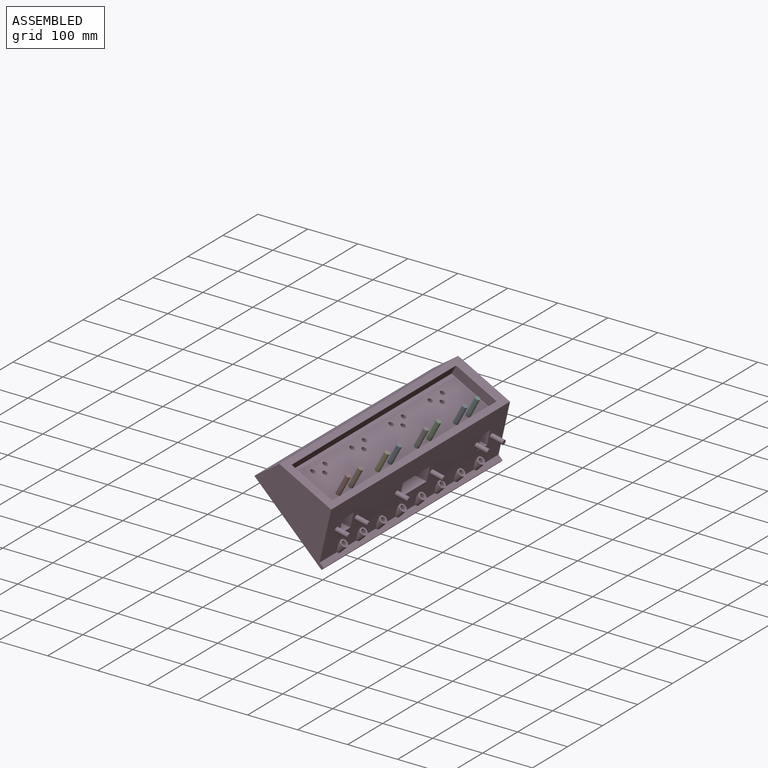
[diagram: assembled view]
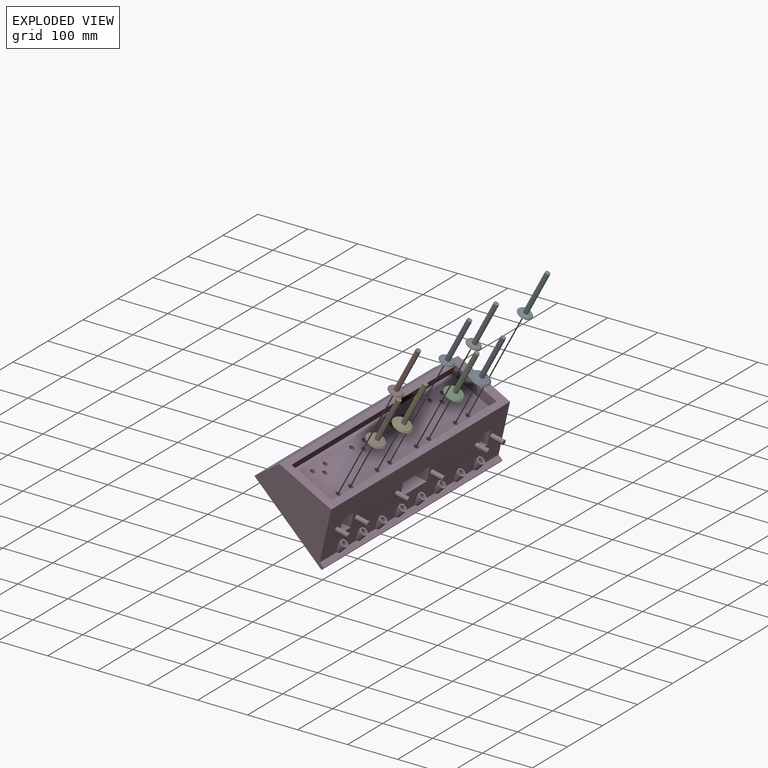
[diagram: exploded view]
GUIDED TOUR — MATED ASSEMBLY (Onshape document ac3dccc6439f314f635ed3dc, AutoMate assembly ac3dccc6439f314f635ed3dc_cd100fb6cbf6c3f0b143298e_cbab13c426cafeba38b45de8_default)

This assembly has 9 components, labeled P0..P8 below (a component is one placed occurrence of a part; the same part can appear more than once), held together by 8 mates. A mate is a constraint between two components; its type names the relative motion it leaves free:
  SLIDER — leaves translation along the listed axis free.
Axis/direction vectors are unit vectors and 'through' points are millimeter coordinates, both in the assembly's world frame.

MATES
  1. SLIDER "Slider 1": P1 <-> P3, axis (-0.469, 0.000, -0.883) through (-127.09, -284.05, -16.08) mm
  2. SLIDER "Slider 8": P5 <-> P3, axis (-0.469, 0.000, -0.883) through (-128.10, 51.23, -17.97) mm
  3. SLIDER "Slider 2": P7 <-> P3, axis (-0.469, 0.000, -0.883) through (-127.08, -319.61, -16.05) mm
  4. SLIDER "Slider 6": P8 <-> P3, axis (0.469, 0.000, 0.883) through (-105.87, -172.29, 23.85) mm
  5. SLIDER "Slider 7": P6 <-> P3, axis (-0.469, 0.000, -0.883) through (-127.58, -96.09, -17.00) mm
  6. SLIDER "Slider 3": P4 <-> P3, axis (-0.469, 0.000, -0.883) through (-127.47, -207.85, -16.79) mm
  7. SLIDER "Slider 4": P2 <-> P3, axis (-0.469, 0.000, -0.883) through (-127.43, -60.53, -16.72) mm
  8. SLIDER "Slider 5": P0 <-> P3, axis (-0.469, 0.000, -0.883) through (-128.21, 15.67, -18.18) mm

ASSEMBLY ORDER
  1. P3 — the base component [order heuristic]
  2. P1 — core [order heuristic]
  3. P4 — core [order heuristic]
  4. P6 [order verified]
  5. P8 [order verified]
  6. P5 [order verified]
  7. P0 [order verified]
  8. P2 [order verified]
  9. P7 [order verified]
(P0, P2, P5, P6, P8 verified with a relaxed clearance tolerance: the source model stores slight part interference there.)
Order-tag legend:
  [order verified] — this step's position reverses a verified removal order: the component was checked to insert without passing through the ones already placed.
  [order heuristic] — the first 3 components form the assembly's core: parts whose collision-free extraction could not be verified, listed in mate-graph order.

Of the 9 components, 4 carry the full construction recipe — the FeatureScript program that regenerates the part's solid from scratch; the rest are supplied as boundary geometry only.
Each toured component is shown spotlighted twice — in the assembled view, then in the exploded view, where a leader line traces a displaced component back to its assembled socket (saturated green if recipe-attached, orange if geometry-only; every other component desaturated gray) — followed by its recipe or geometry summary and the mates that hold it.
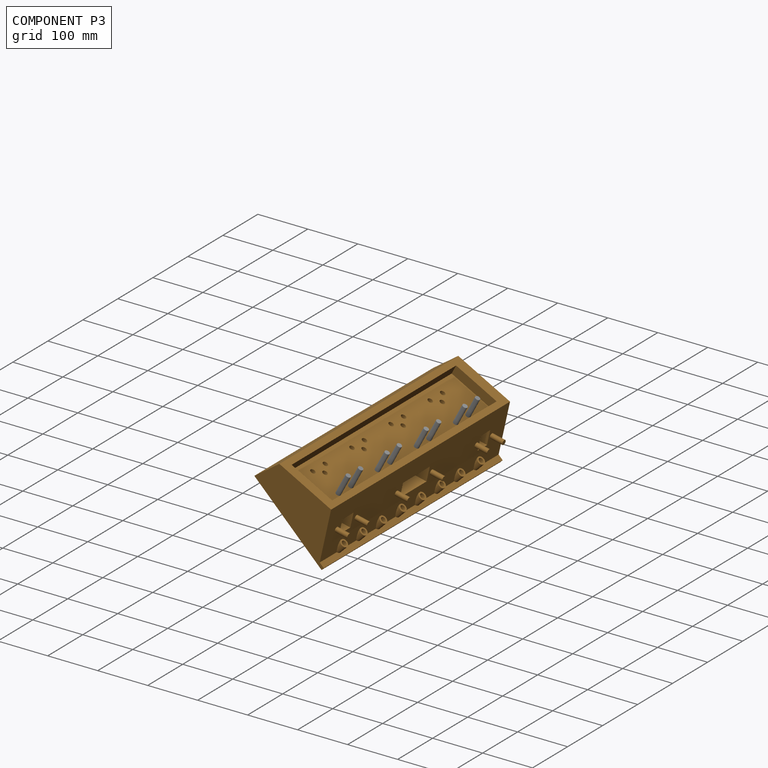
[diagram: component P3 — assembled]
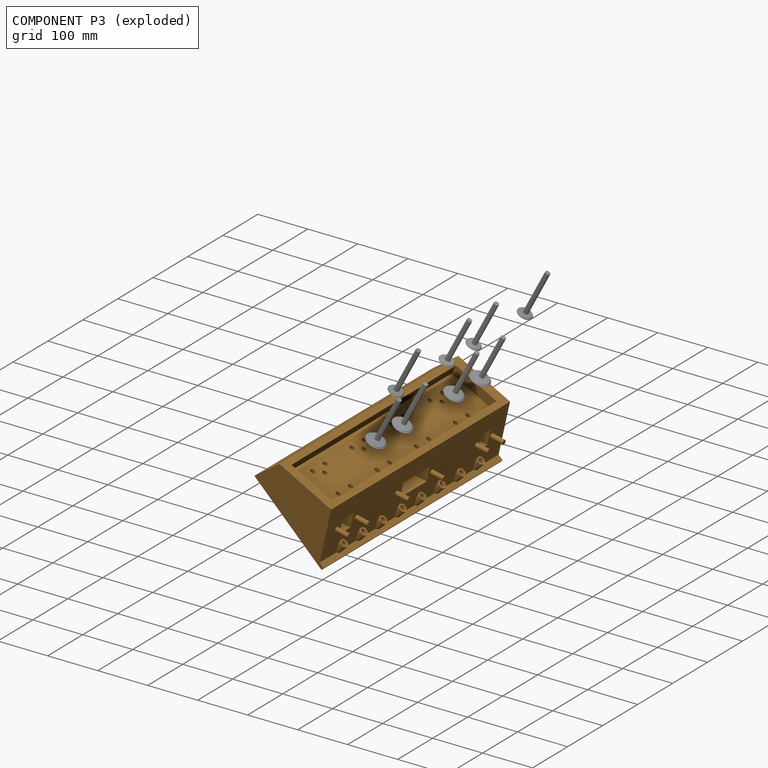
[diagram: component P3 — exploded]
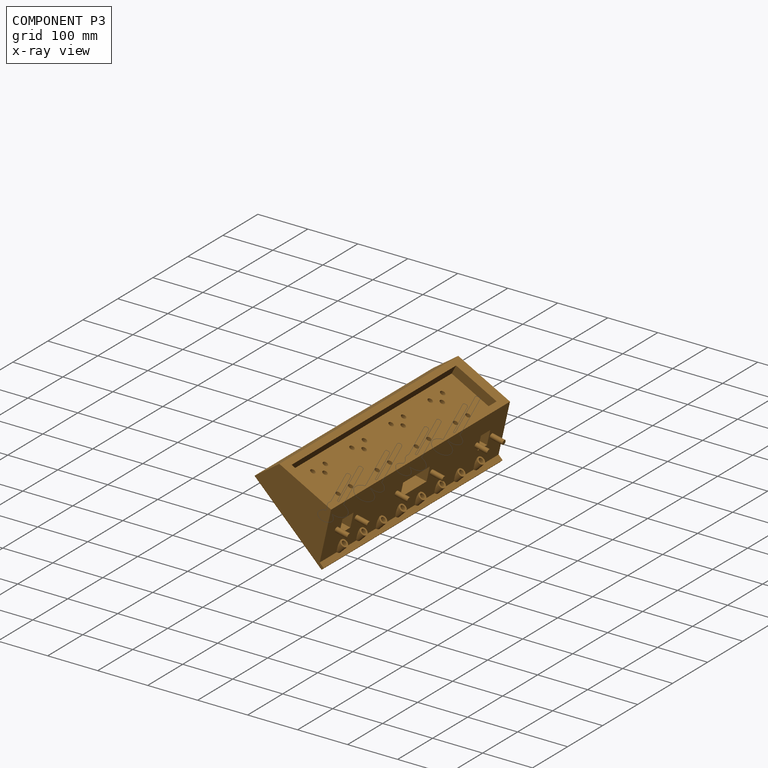
[diagram: component P3 — x-ray view]
COMPONENT P3 — geometry summary (no construction recipe available for this part):
  bounding box: 511.7 x 169.9 x 168.5 mm
  B-rep topology: 1 solid, 110 faces, 550 edges
  volume: 4595242 mm^3 (31% of its bounding box)
Held by: SLIDER mate "Slider 1" to P1; SLIDER mate "Slider 8" to P5; SLIDER mate "Slider 2" to P7; SLIDER mate "Slider 6" to P8; SLIDER mate "Slider 7" to P6; SLIDER mate "Slider 3" to P4; SLIDER mate "Slider 4" to P2; SLIDER mate "Slider 5" to P0.
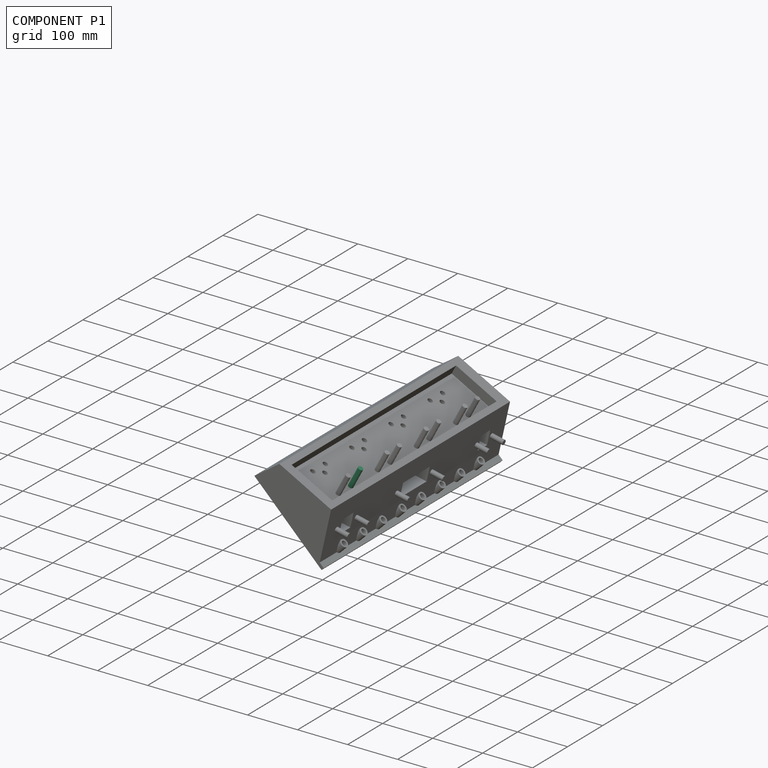
[diagram: component P1 — assembled]
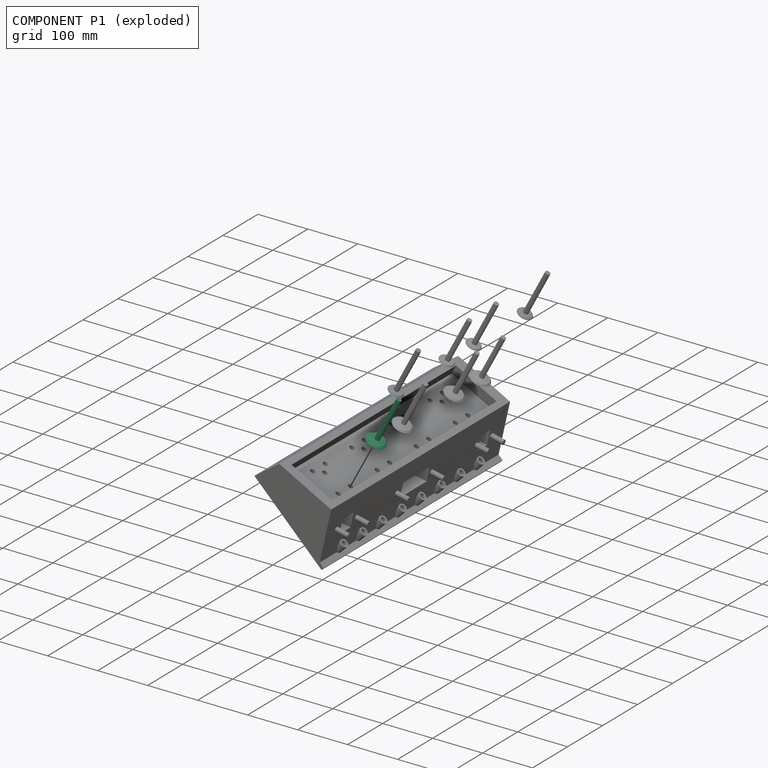
[diagram: component P1 — exploded]
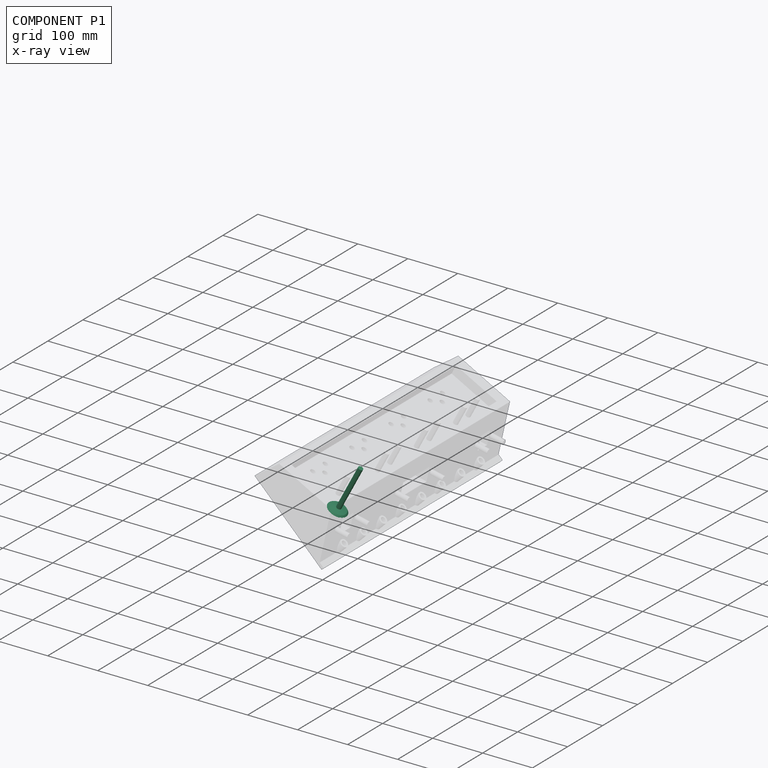
[diagram: component P1 — x-ray view]
COMPONENT P1 — same part as P0 (CADFS 00629434); its construction recipe is shown at P0.
Held by: SLIDER mate "Slider 1" to P3.
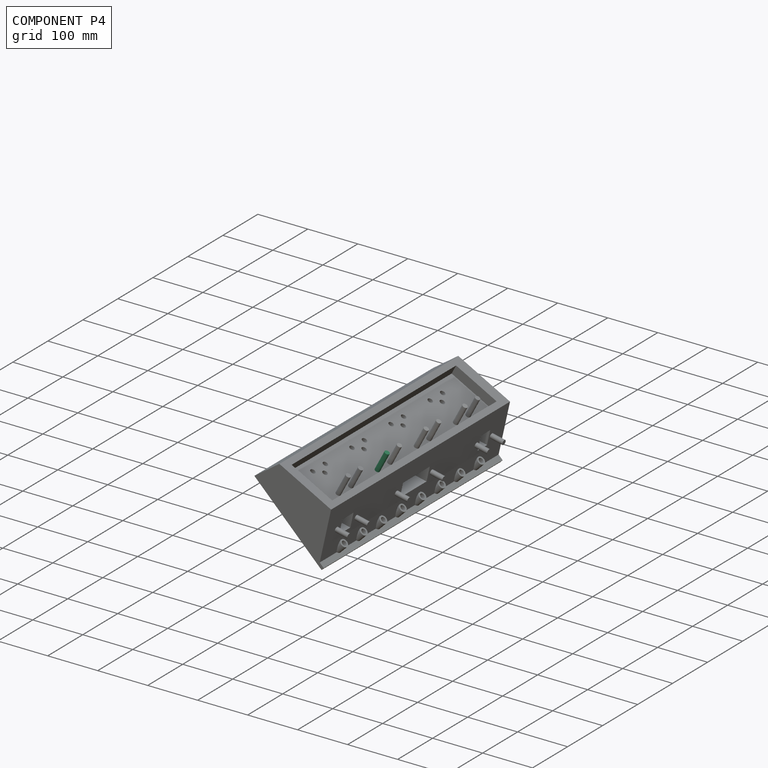
[diagram: component P4 — assembled]
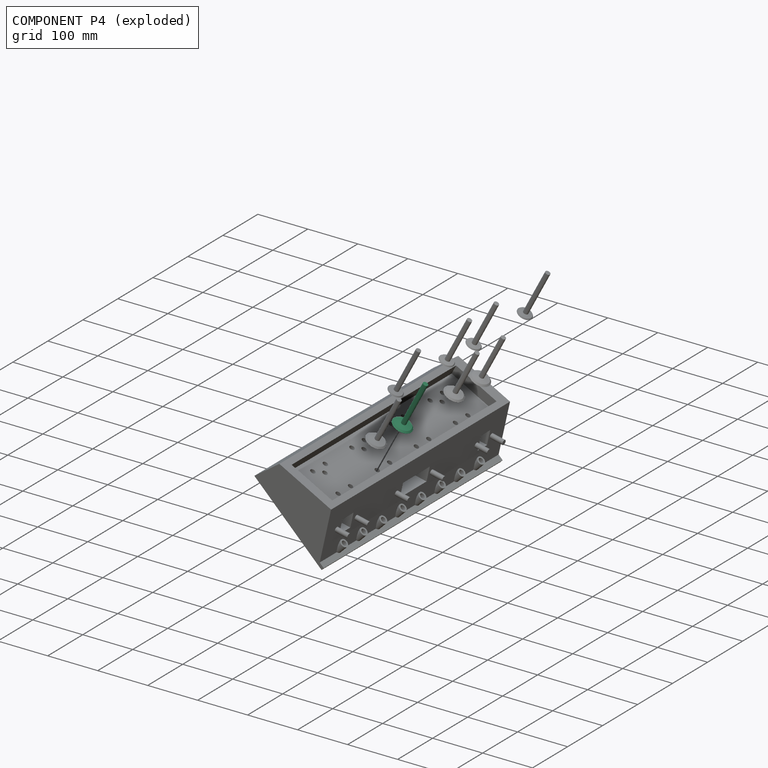
[diagram: component P4 — exploded]
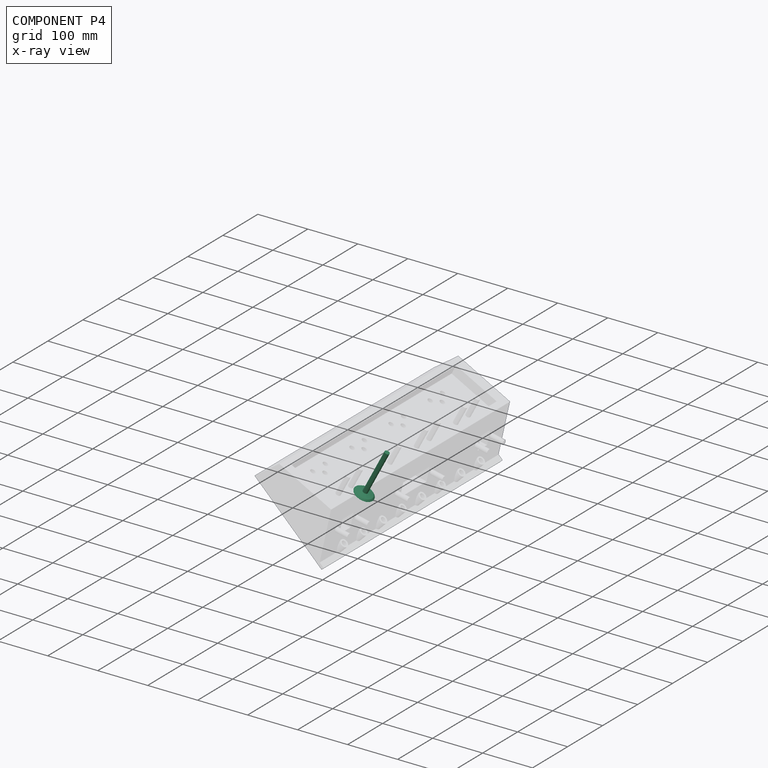
[diagram: component P4 — x-ray view]
COMPONENT P4 — same part as P0 (CADFS 00629434); its construction recipe is shown at P0.
Held by: SLIDER mate "Slider 3" to P3.
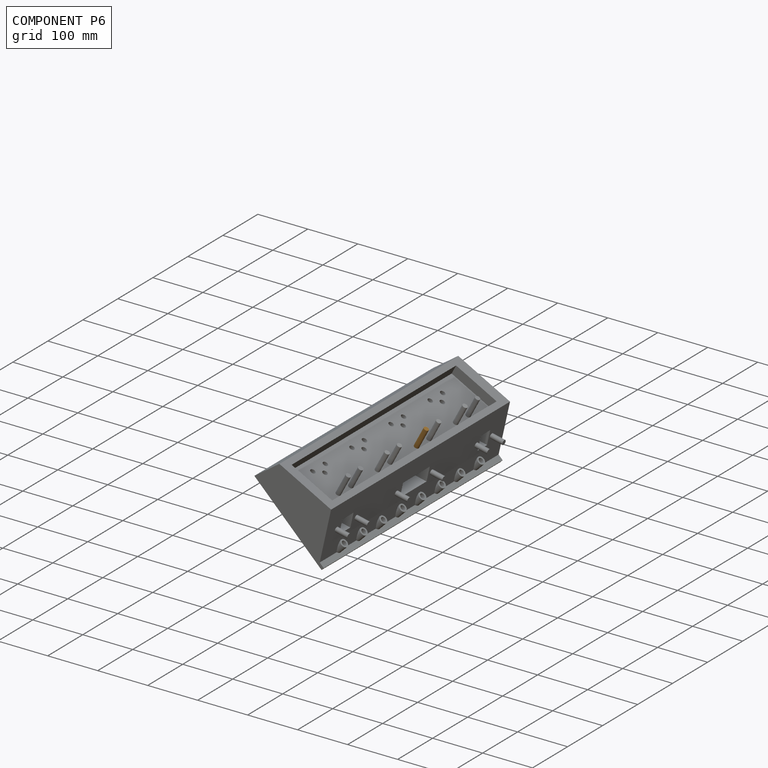
[diagram: component P6 — assembled]
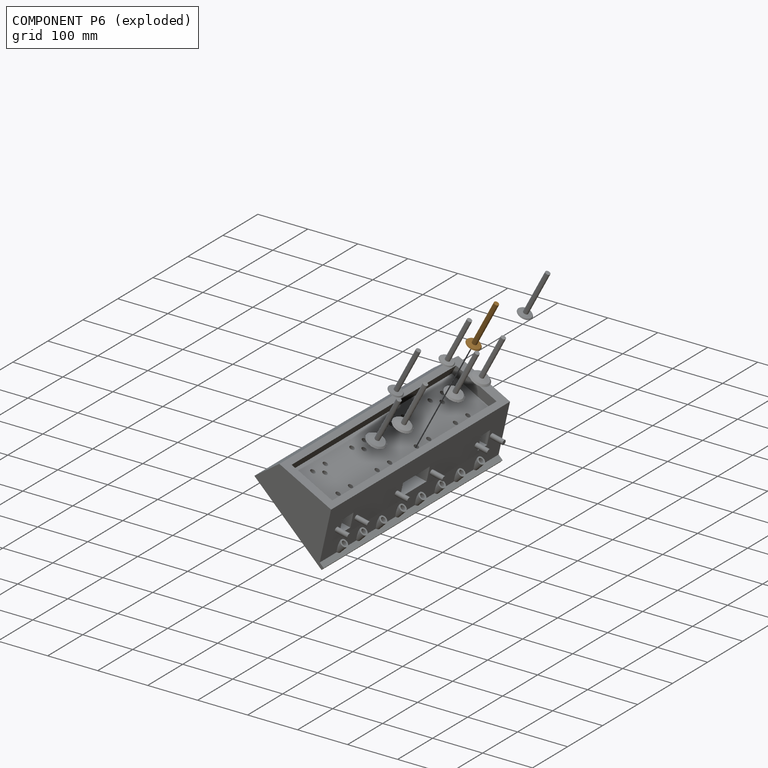
[diagram: component P6 — exploded]
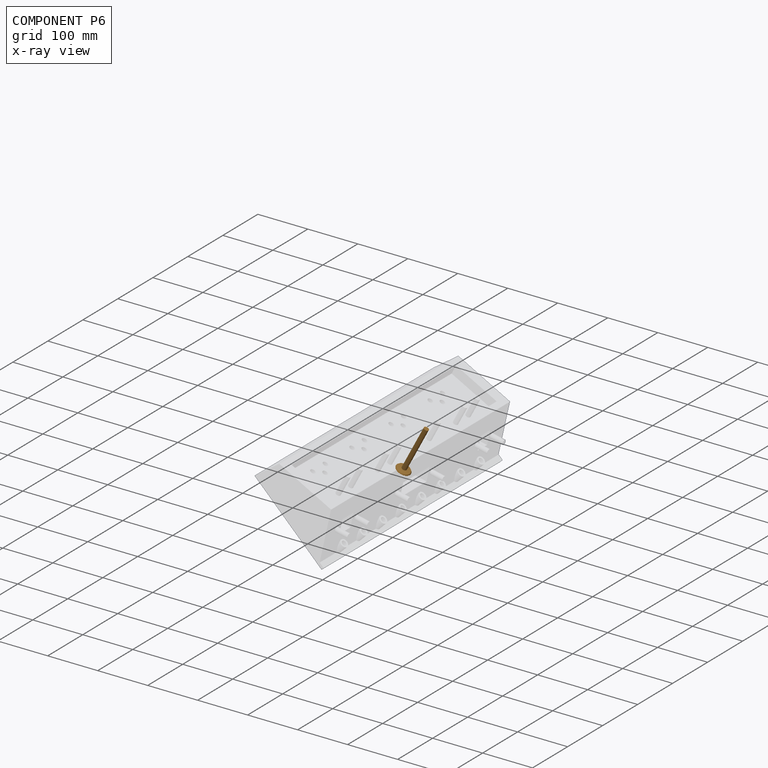
[diagram: component P6 — x-ray view]
COMPONENT P6 — geometry summary (no construction recipe available for this part):
  bounding box: 97.7 x 29.0 x 29.0 mm
  B-rep topology: 1 solid, 5 faces, 14 edges
  volume: 8270 mm^3 (10% of its bounding box)
  symmetry: revolution-symmetric about the z axis through its bounding-box center; mirror-symmetric across its x mid-plane, y mid-plane
Held by: SLIDER mate "Slider 7" to P3.
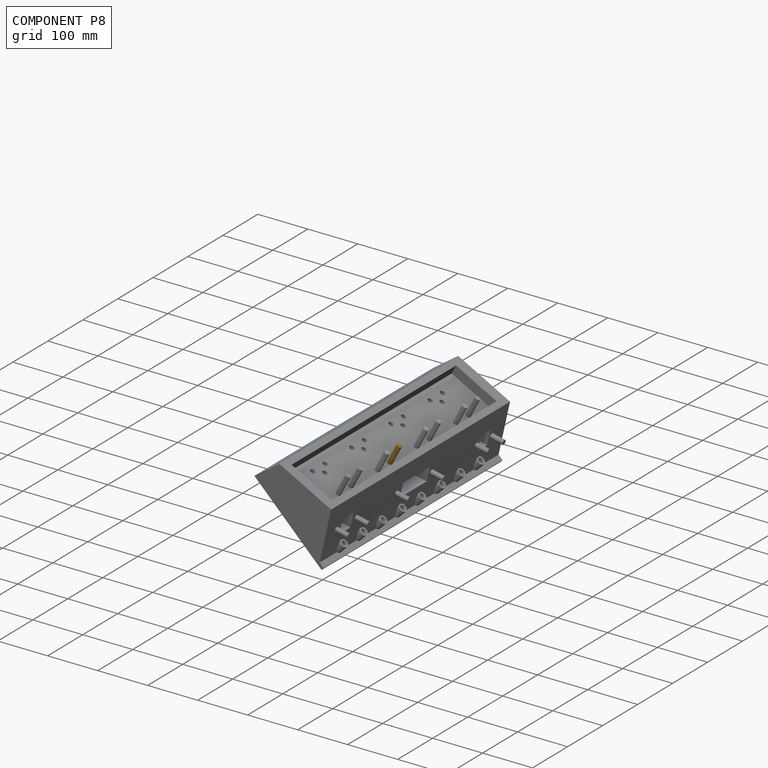
[diagram: component P8 — assembled]
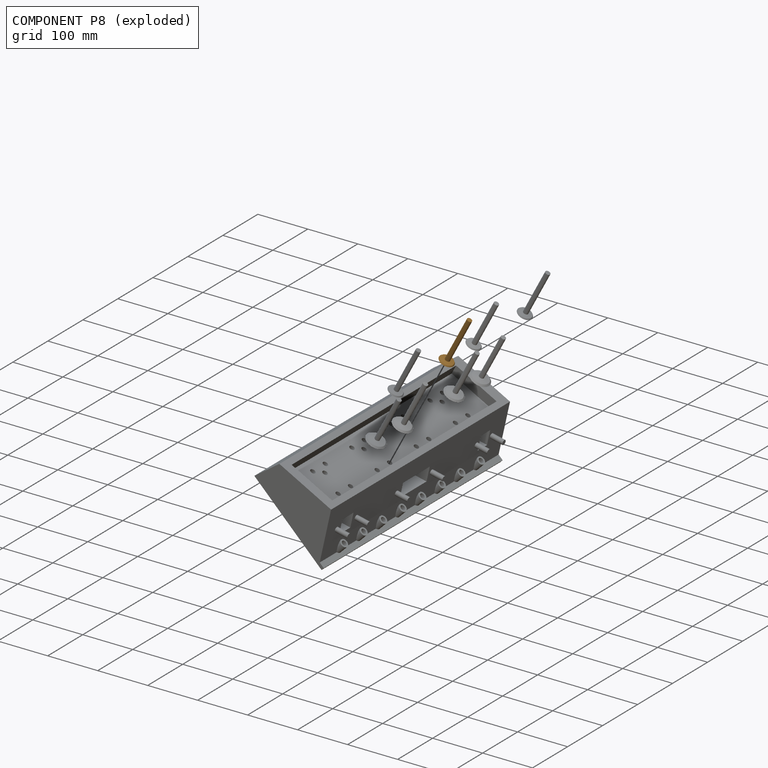
[diagram: component P8 — exploded]
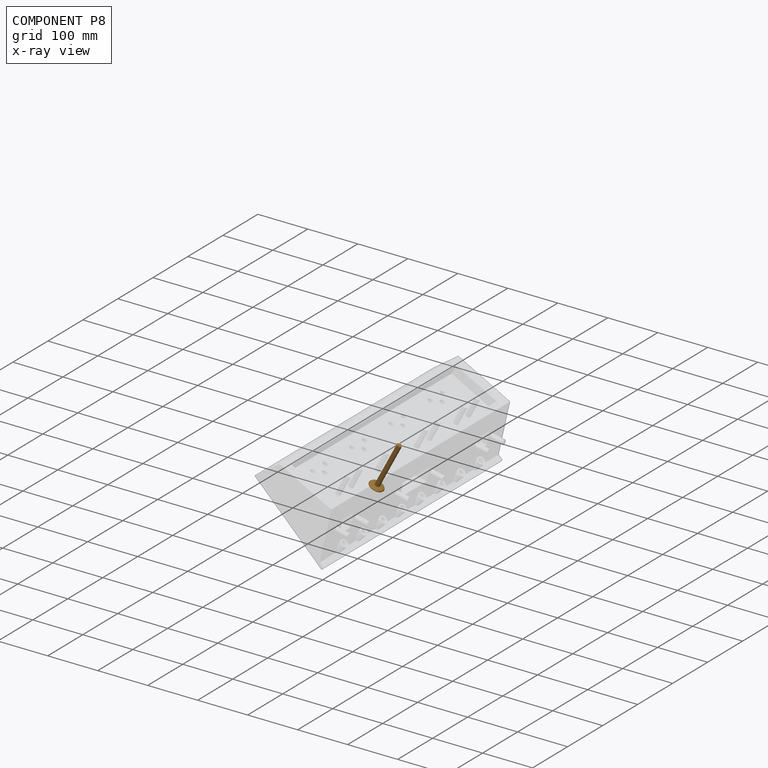
[diagram: component P8 — x-ray view]
COMPONENT P8 — geometry summary (no construction recipe available for this part):
  bounding box: 97.7 x 29.0 x 29.0 mm
  B-rep topology: 1 solid, 5 faces, 14 edges
  volume: 8270 mm^3 (10% of its bounding box)
  symmetry: revolution-symmetric about the z axis through its bounding-box center; mirror-symmetric across its x mid-plane, y mid-plane
Held by: SLIDER mate "Slider 6" to P3.
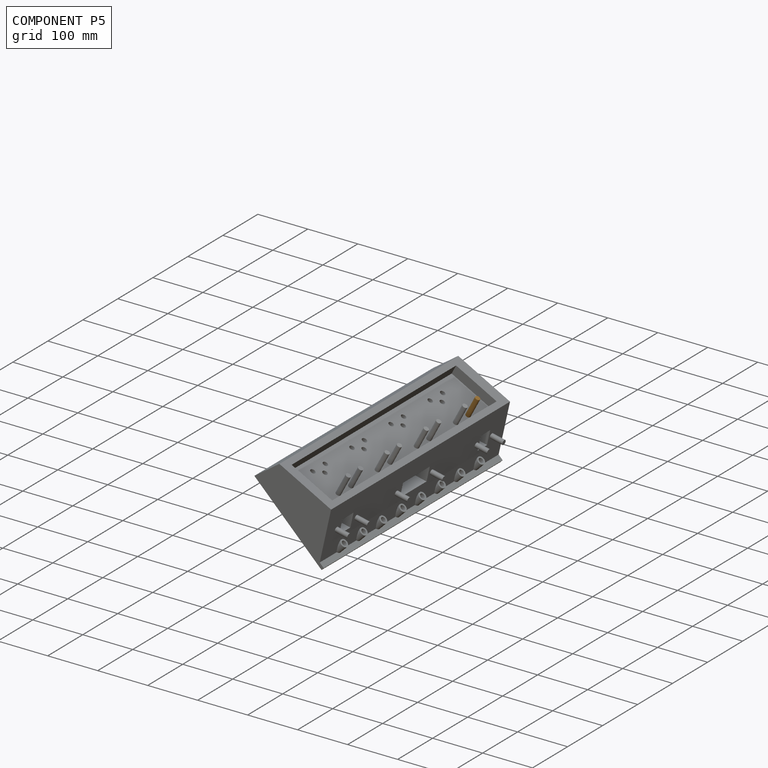
[diagram: component P5 — assembled]
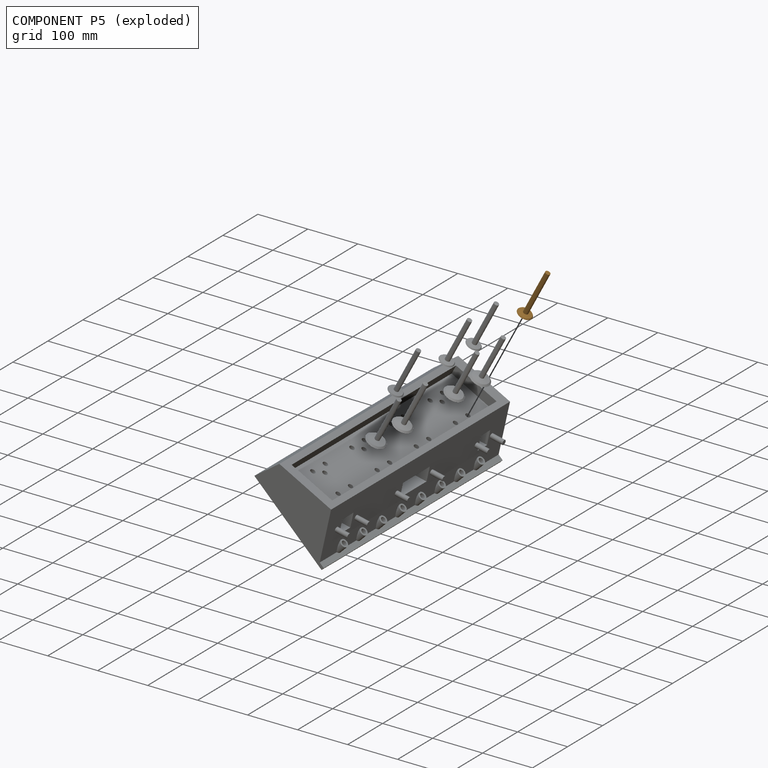
[diagram: component P5 — exploded]
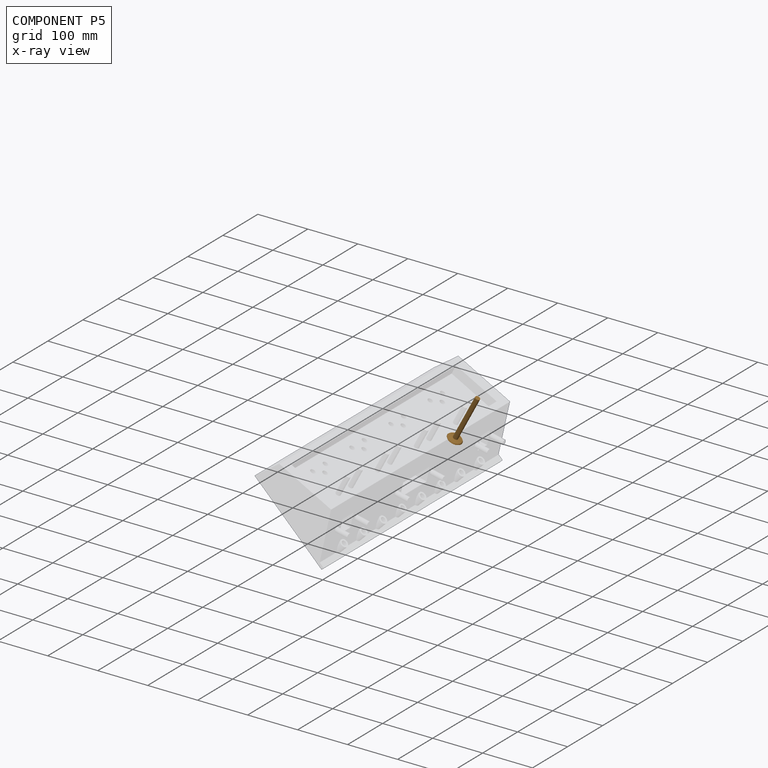
[diagram: component P5 — x-ray view]
COMPONENT P5 — geometry summary (no construction recipe available for this part):
  bounding box: 97.7 x 29.0 x 29.0 mm
  B-rep topology: 1 solid, 5 faces, 14 edges
  volume: 8270 mm^3 (10% of its bounding box)
  symmetry: revolution-symmetric about the z axis through its bounding-box center; mirror-symmetric across its x mid-plane, y mid-plane
Held by: SLIDER mate "Slider 8" to P3.
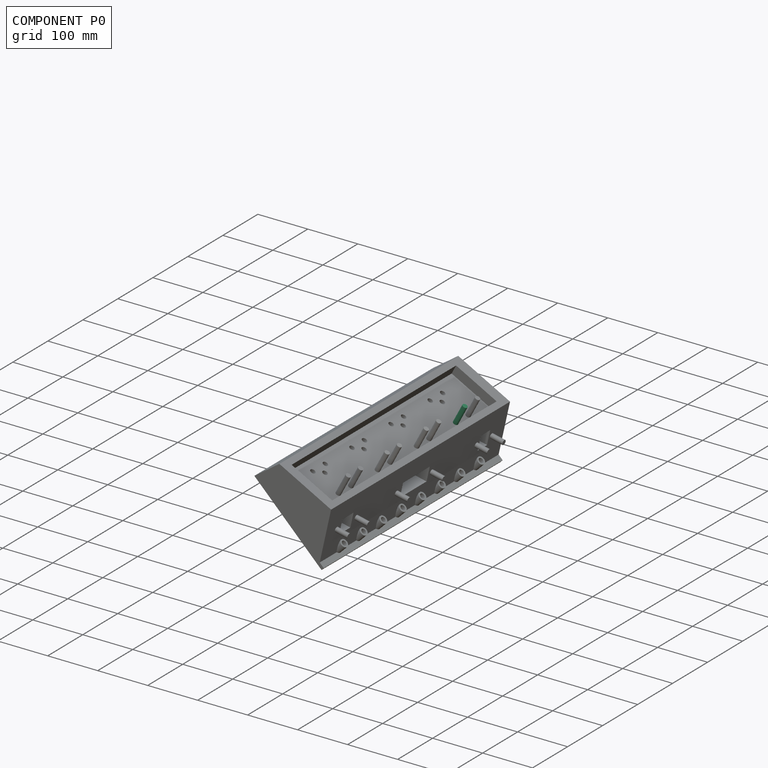
[diagram: component P0 — assembled]
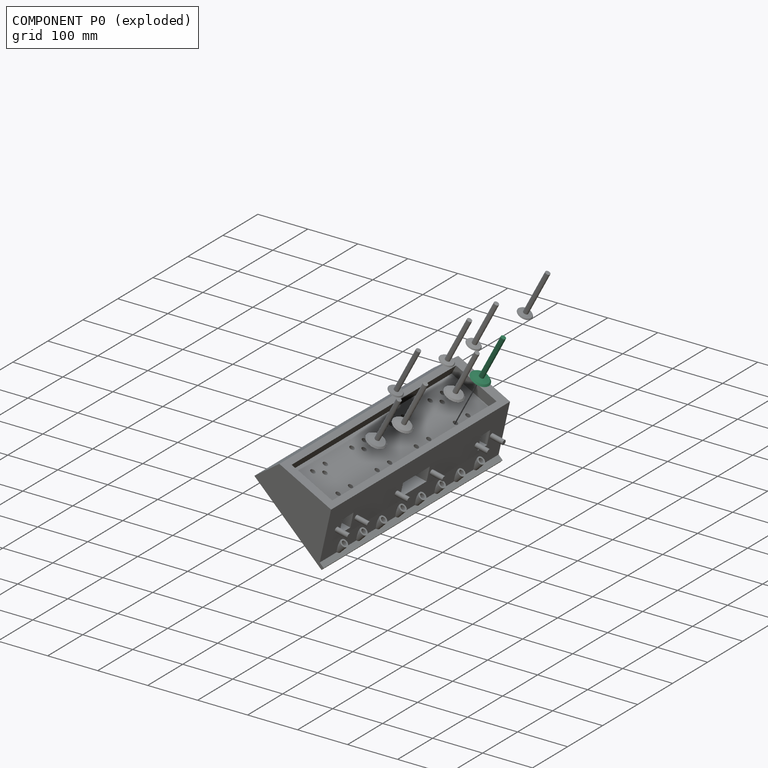
[diagram: component P0 — exploded]
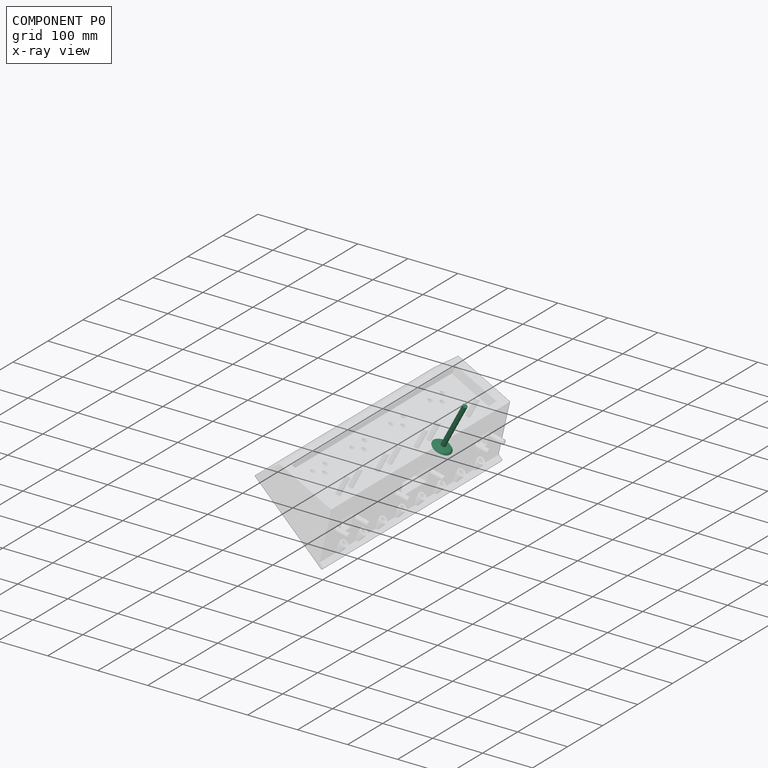
[diagram: component P0 — x-ray view]
COMPONENT P0 — recipe-attached (CADFS 00629434, mesh-verified: the recipe's output STEP matches this component's geometry to below the mesh-comparison resolution (tessellation chordal tolerance ~0.169 mm)).
Held by: SLIDER mate "Slider 5" to P3.
Construction recipe (FeatureScript — the CAD program that rebuilds this solid; sketch coordinates are in the units given by the * unit suffixes, e.g. mm):

FeatureScript 1732;
import(path : "onshape/std/geometry.fs", version : "1732.0");
import(path : "onshape/std/common.fs", version : "1732.0");
const mm = millimeter;
const VERTEX = EntityType.VERTEX;
const EDGE = EntityType.EDGE;
const FACE = EntityType.FACE;
const BODY = EntityType.BODY;
function v(x, y){return vector(x, y);}
function OD(order){return orderDisambiguation(order);}
function OSD(set){return originalSetDisambiguation(set);}
function TD(topology){return topologyDisambiguation(topology);}
function TDD(query){return trueDependencyDisambiguation(query);}
function sQuery(a, b, c) {return sketchEntityQuery(a, b, c);}

annotation { "Feature Type Name" : "Feature", "Feature Type Description" : "" }
export const myFeature = defineFeature(function(context is Context, id is Id, definition is map)
    precondition{}
    {
        {
            var Q0;
            Q0=qCreatedBy(makeId("Top.planeOp"),FACE);
            var sketch = newSketch(context, id + "F0", { "sketchPlane" : qUnion([Q0])});
            skCircle(sketch, "E0", {"center": v(0, 0) * mm, "radius": 25.65 * mm});
            skSolve(sketch);
        }
        {
            var Q0;
            Q0=qCreatedBy(makeId("Front.planeOp"),FACE);
            var sketch = newSketch(context, id + "F1", { "sketchPlane" : qUnion([Q0])});
            skLineSegment(sketch, "E1", {"start": v(0, 0) * mm, "end": v(19.18, 0) * mm});
            skLineSegment(sketch, "E2", {"start": v(19.18, 0) * mm, "end": v(16.12, 3.14) * mm});
            skLineSegment(sketch, "E3.bottom", {"start": v(-4.76, 69.85) * mm, "end": v(4.76, 69.85) * mm});
            skLineSegment(sketch, "E3.top", {"start": v(-4.76, -69.85) * mm, "end": v(4.76, -69.85) * mm});
            skLineSegment(sketch, "E3.left", {"start": v(-4.76, 69.85) * mm, "end": v(-4.76, -69.85) * mm});
            skLineSegment(sketch, "E3.right", {"start": v(4.76, 69.85) * mm, "end": v(4.76, 4.95) * mm});
            skPoint(sketch, "E3.middle", {"position": v(0, 0) * mm});
            skLineSegment(sketch, "E4", {"start": v(16.12, 3.14) * mm, "end": v(4.76, 4.95) * mm});
            skLineSegment(sketch, "E5", {"start": v(0, 0) * mm, "end": v(-4.76, 0) * mm});
            skLineSegment(sketch, "E6.MirrorCS", {"start": v(-16.12, 3.14) * mm, "end": v(-4.76, 4.95) * mm});
            skLineSegment(sketch, "E7.MirrorCS", {"start": v(-19.18, 0) * mm, "end": v(-16.12, 3.14) * mm});
            skLineSegment(sketch, "E8.MirrorCS", {"start": v(0, 0) * mm, "end": v(-19.18, 0) * mm});
            skLineSegment(sketch, "E9", {"start": v(0, 69.85) * mm, "end": v(0, -34.88) * mm});
            skSolve(sketch);
        }
        {
            var Q0;
            {var subQ4=sQuery(id+"F1.wireOp",EDGE,"E1");Q0=makeQuery(id+"F1.imprint","IMPRINT",FACE,{"disambiguationData":[TD([[makeQuery(id+"F1.imprint","IMPRINT",EDGE,{"derivedFrom":subQ4}),1.0]])]});}
            var Q1;
            Q1=sQuery(id+"F0.wireOp",EDGE,"E0");
            revolve(context, id + "F2", {"entities" : qUnion([Q0]), "axis" : qUnion([Q1]), "revolveType" : RevolveType.FULL});
        }
        {
            var Q0;
            Q0=makeQuery(id+"F2.opRevolve","SWEPT_FACE",FACE,{"disambiguationData":[OSD([sQuery(id+"F1.wireOp",EDGE,"E3.bottom")])]});
            extrude(context, id + "F3", {"entities" : qUnion([Q0]), "operationType" : NewBodyOperationType.ADD, "depth" : 50.8 * mm, "offsetDistance" : 25.4 * mm});
        }
        {
            var Q0;
            Q0=makeQuery(id+"F3.opExtrude","CAP_FACE",FACE,{"disambiguationData":[OSD([sQuery(id+"F1.wireOp",EDGE,"E3.bottom")])],"isStart":false});
            extrude(context, id + "F4", {"entities" : qUnion([Q0]), "operationType" : NewBodyOperationType.REMOVE, "oppositeDirection" : true, "depth" : 22.22 * mm, "offsetDistance" : 25.4 * mm});
        }
    });
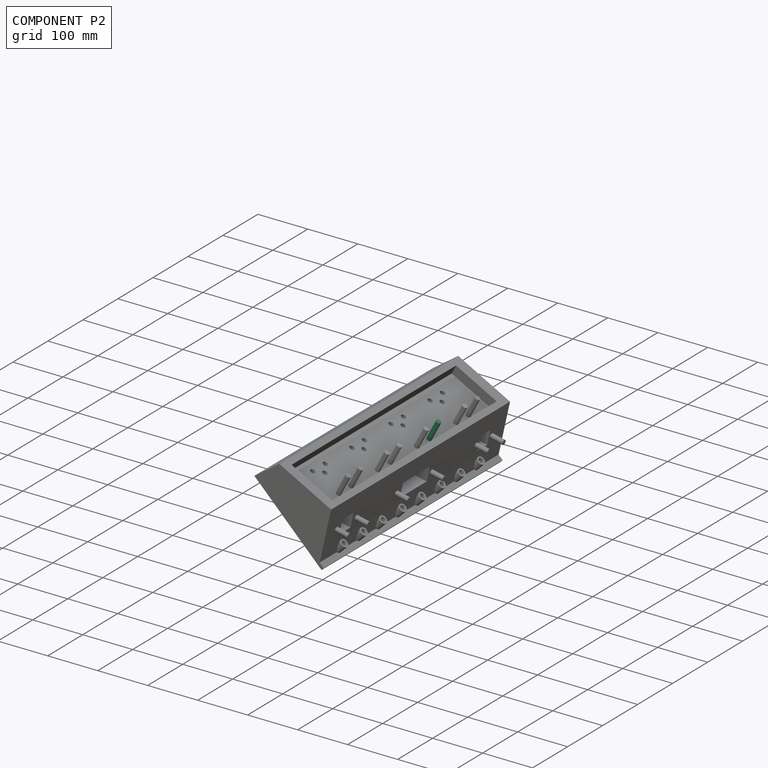
[diagram: component P2 — assembled]
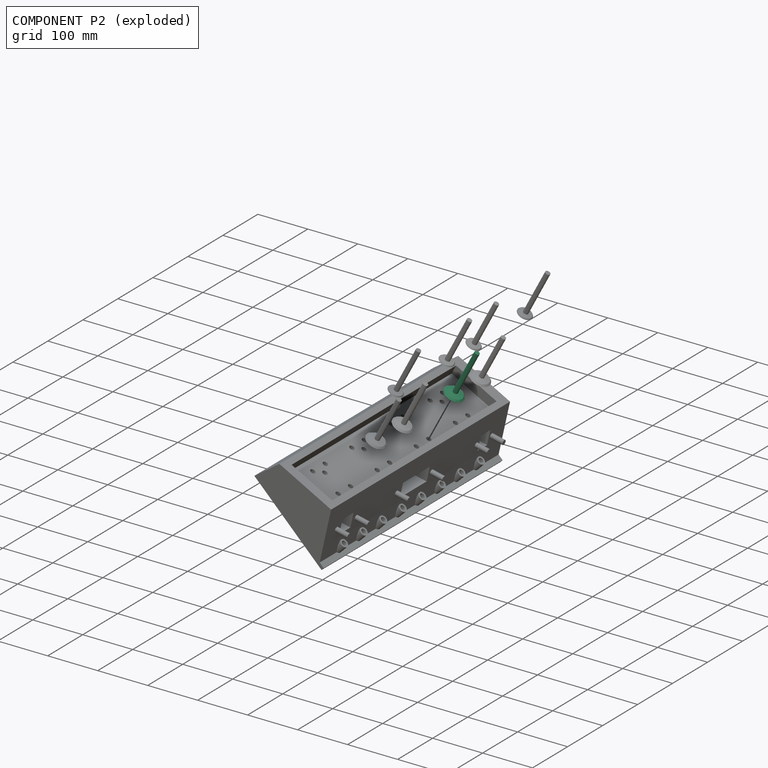
[diagram: component P2 — exploded]
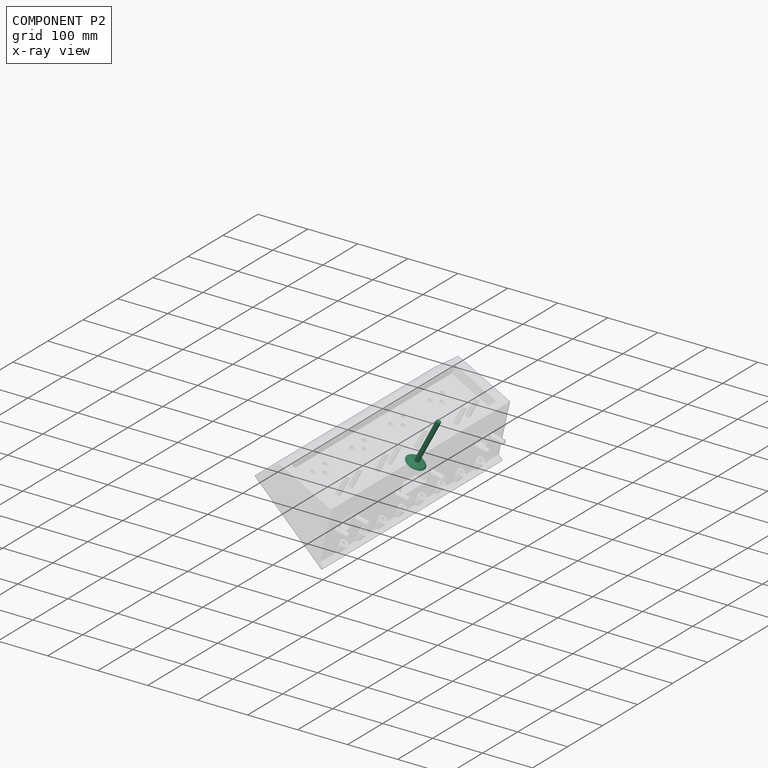
[diagram: component P2 — x-ray view]
COMPONENT P2 — same part as P0 (CADFS 00629434); its construction recipe is shown at P0.
Held by: SLIDER mate "Slider 4" to P3.
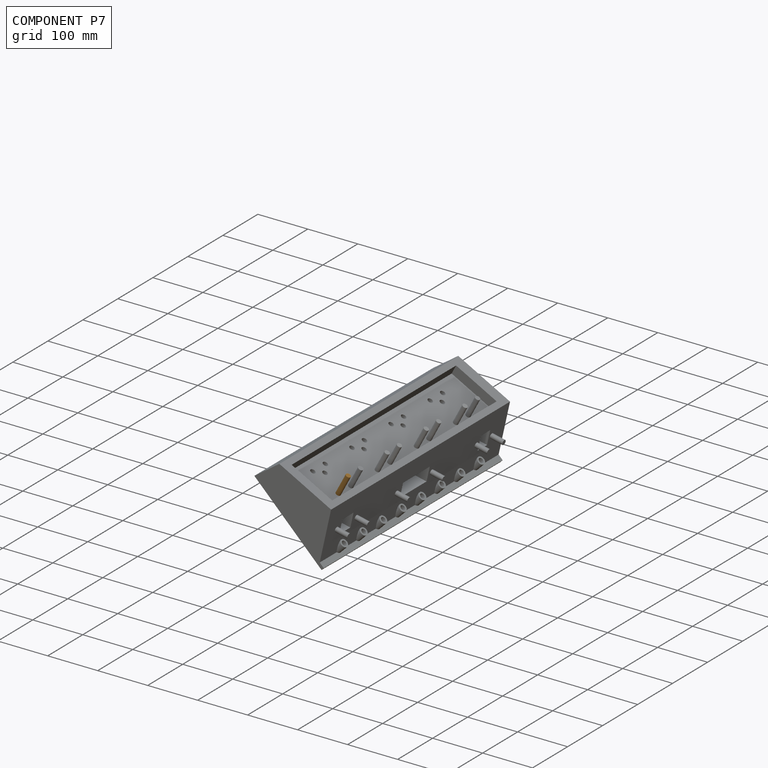
[diagram: component P7 — assembled]
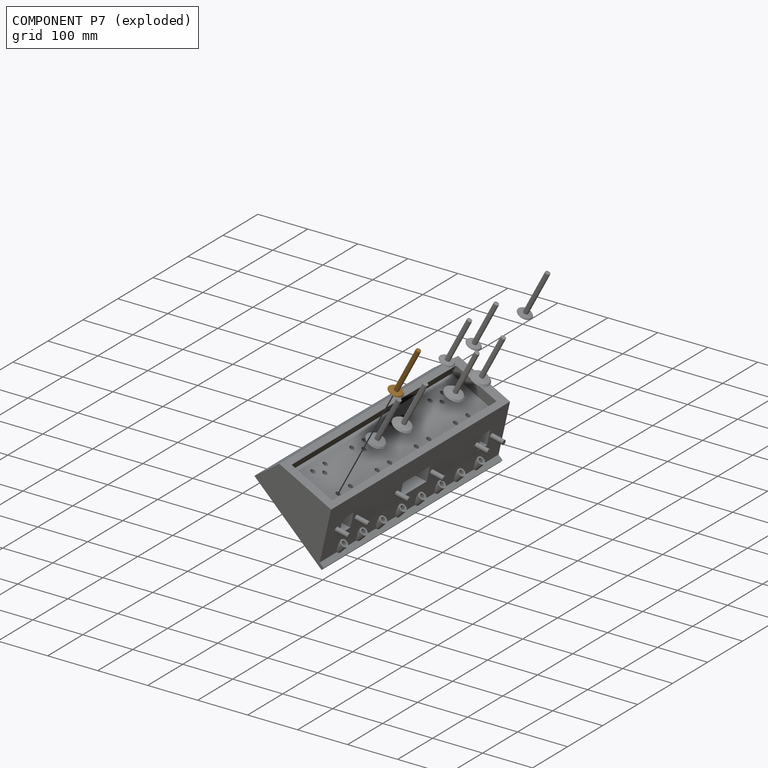
[diagram: component P7 — exploded]
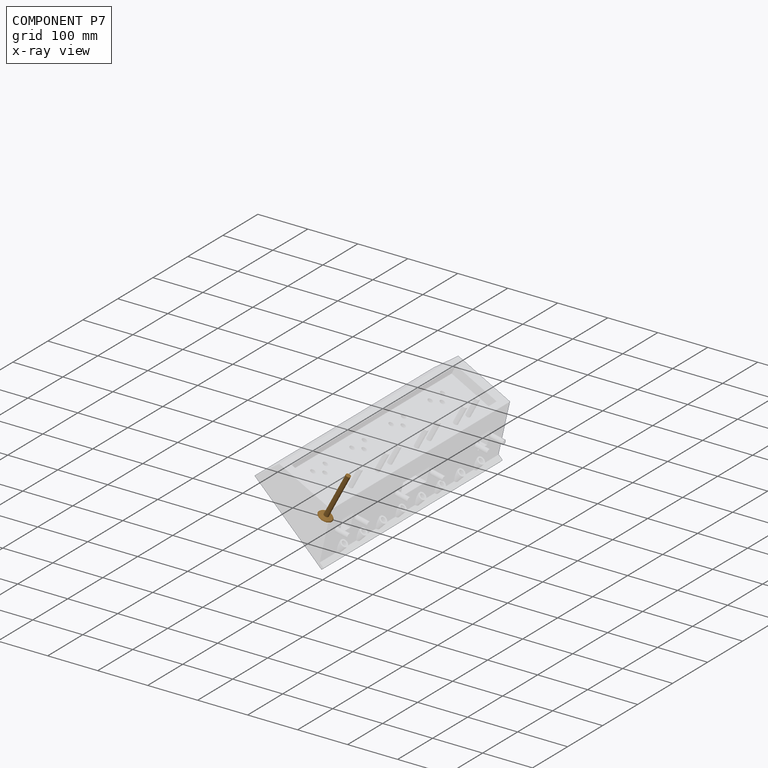
[diagram: component P7 — x-ray view]
COMPONENT P7 — geometry summary (no construction recipe available for this part):
  bounding box: 97.7 x 29.0 x 29.0 mm
  B-rep topology: 1 solid, 5 faces, 14 edges
  volume: 8270 mm^3 (10% of its bounding box)
  symmetry: revolution-symmetric about the z axis through its bounding-box center; mirror-symmetric across its x mid-plane, y mid-plane
Held by: SLIDER mate "Slider 2" to P3.
PROVENANCE & LICENSES
Assembly (occurrences, transforms, mates, per-part STEP geometry): AutoMate dataset, Zenodo record 7776208, CC0.
Construction recipes: CADFS (HuggingFace VladPyatov/CADFS, CC-BY-4.0, layered over the ABC dataset), FeatureScript reconstruction programs keyed by ABC model id.
Join: ABC meta listings map ABC model id -> Onshape documentId; within a shared document, parts are matched by geometric signature (bounding-box dims + volume at 0.1% relative tolerance, exact B-rep face/solid counts).
Verification: 4 of this assembly's 9 components carry a recipe attachment, and every attachment is mesh-verified: the CADFS STEP and the AutoMate member STEP were compared as meshes in their shared local frame (symmetric sampled-point-to-mesh distance); worst across the 4 attachments: below the mesh-comparison resolution (tessellation chordal tolerance ~0.169 mm) on a 112 mm part.
Renders: orthographic iso camera (az 35 / el 25); the floor grid conveys scale (grid pitch printed in each image; no ruler). In the exploded view each component is displaced by its stored offset vector: the offsets alone carry the explosion direction (mate normal/axis signs are not orientation cues and do not encode it), and separation distances are assigned per mate-chain, not proportionally to assembly-order depth.
